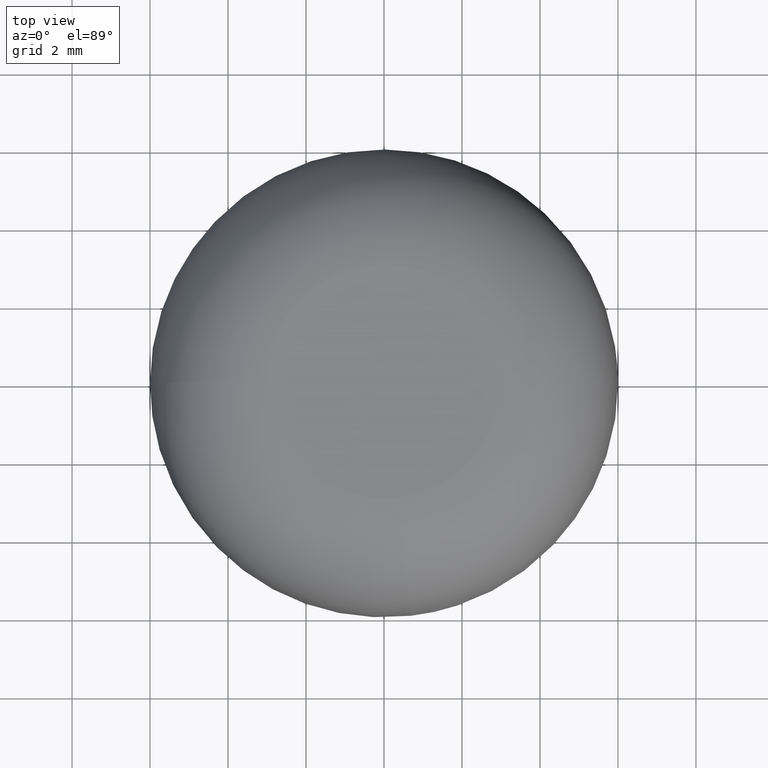
[diagram: clean part render]
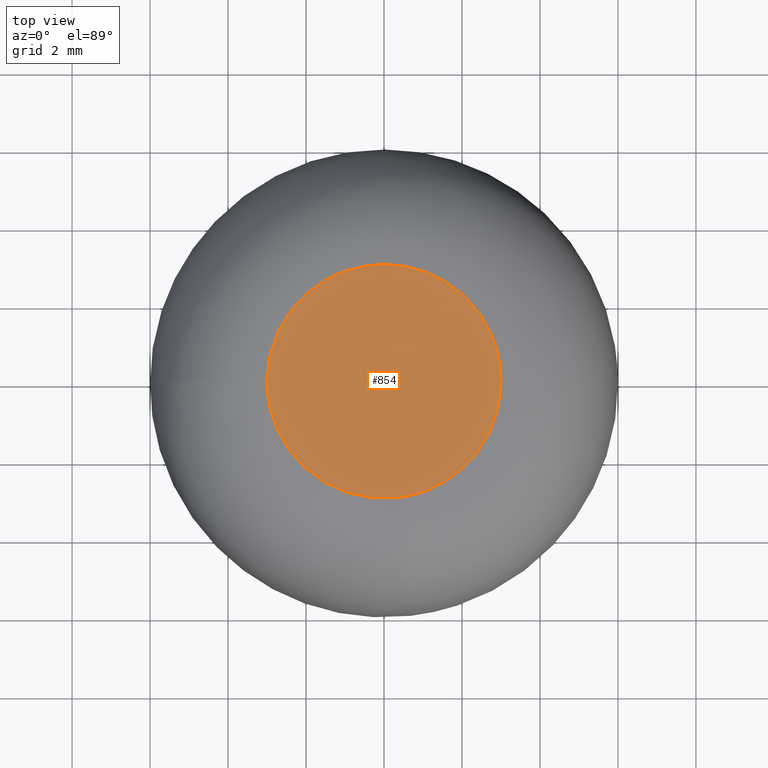
[diagram: same view with one face highlighted and labeled with its STEP entity id]
A machine part, top view. The second image highlights one B-rep face of the part: STEP entity #854.
In plain terms, the highlighted face is a freeform B-spline surface patch.
Its self-contained STEP definition (entity closure, byte-faithful):
#639=CARTESIAN_POINT('',(0.346389949444833,-2.979935234684809,8.0));
#640=VERTEX_POINT('',#639);
#641=CARTESIAN_POINT('',(-3.0,0.0,8.0));
#642=VERTEX_POINT('',#641);
#643=CARTESIAN_POINT('',(0.346389949444833,-2.979935234684809,8.000000000000002));
#644=CARTESIAN_POINT('',(0.173776104180414,-3.0,8.0));
#645=CARTESIAN_POINT('',(0.0,-3.0,8.0));
#646=CARTESIAN_POINT('',(-3.0,-3.0,8.0));
#647=CARTESIAN_POINT('',(-3.0,0.0,8.0));
#655=(BOUNDED_CURVE()B_SPLINE_CURVE(2,(#643,#644,#645,#646,#647),.UNSPECIFIED.,.F.,.U.)B_SPLINE_CURVE_WITH_KNOTS((3,2,3),(0.730000155452255,0.750000000000000,1.0),.UNSPECIFIED.)CURVE()GEOMETRIC_REPRESENTATION_ITEM()RATIONAL_B_SPLINE_CURVE((0.956886424158610,0.976568724618569,1.0,0.707106781186548,1.0))REPRESENTATION_ITEM(''));
#656=EDGE_CURVE('',#640,#642,#655,.T.);
#749=CARTESIAN_POINT('',(3.0,0.0,8.0));
#750=VERTEX_POINT('',#749);
#751=CARTESIAN_POINT('',(3.0,0.0,8.0));
#752=CARTESIAN_POINT('',(3.000000000000000,-2.671477574076783,8.0));
#753=CARTESIAN_POINT('',(0.346389949444833,-2.979935234684809,8.000000000000002));
#761=(BOUNDED_CURVE()B_SPLINE_CURVE(2,(#751,#752,#753),.UNSPECIFIED.,.F.,.U.)B_SPLINE_CURVE_WITH_KNOTS((3,3),(0.500000000000000,0.730000155452255),.UNSPECIFIED.)CURVE()GEOMETRIC_REPRESENTATION_ITEM()RATIONAL_B_SPLINE_CURVE((1.0,0.730538056567979,0.956886424158610))REPRESENTATION_ITEM(''));
#762=EDGE_CURVE('',#750,#640,#761,.T.);
#796=CARTESIAN_POINT('',(-3.0,0.0,8.0));
#797=CARTESIAN_POINT('',(-3.0,3.0,8.0));
#798=CARTESIAN_POINT('',(0.0,3.0,8.0));
#799=CARTESIAN_POINT('',(3.0,3.0,8.0));
#800=CARTESIAN_POINT('',(3.0,0.0,8.0));
#808=(BOUNDED_CURVE()B_SPLINE_CURVE(2,(#796,#797,#798,#799,#800),.UNSPECIFIED.,.F.,.U.)B_SPLINE_CURVE_WITH_KNOTS((3,2,3),(0.0,0.250000000000000,0.500000000000000),.UNSPECIFIED.)CURVE()GEOMETRIC_REPRESENTATION_ITEM()RATIONAL_B_SPLINE_CURVE((1.0,0.707106781186548,1.0,0.707106781186548,1.0))REPRESENTATION_ITEM(''));
#809=EDGE_CURVE('',#642,#750,#808,.T.);
#844=CARTESIAN_POINT('',(-3.299699988370835,-3.299682962843790,8.0));
#845=CARTESIAN_POINT('',(3.299700149303376,-3.299682962843790,8.0));
#846=CARTESIAN_POINT('',(-3.299699988370835,3.299699339299234,8.0));
#847=CARTESIAN_POINT('',(3.299700149303376,3.299699339299234,8.0));
#848=B_SPLINE_SURFACE_WITH_KNOTS('',1,1,((#844,#846),(#845,#847)),.UNSPECIFIED.,.F.,.F.,.U.,(2,2),(2,2),(0.0,6.599400137674212),(0.0,6.599382302143024),.UNSPECIFIED.);
#849=ORIENTED_EDGE('',*,*,#656,.F.);
#850=ORIENTED_EDGE('',*,*,#762,.F.);
#851=ORIENTED_EDGE('',*,*,#809,.F.);
#852=EDGE_LOOP('',(#849,#850,#851));
#853=FACE_OUTER_BOUND('',#852,.T.);
#854=ADVANCED_FACE('',(#853),#848,.T.);